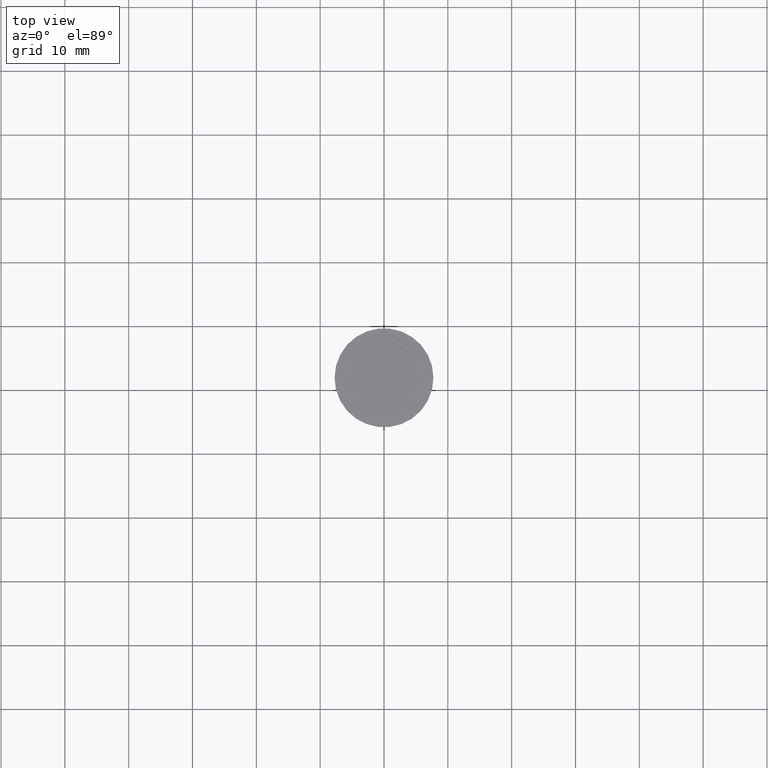
[diagram: clean part render]
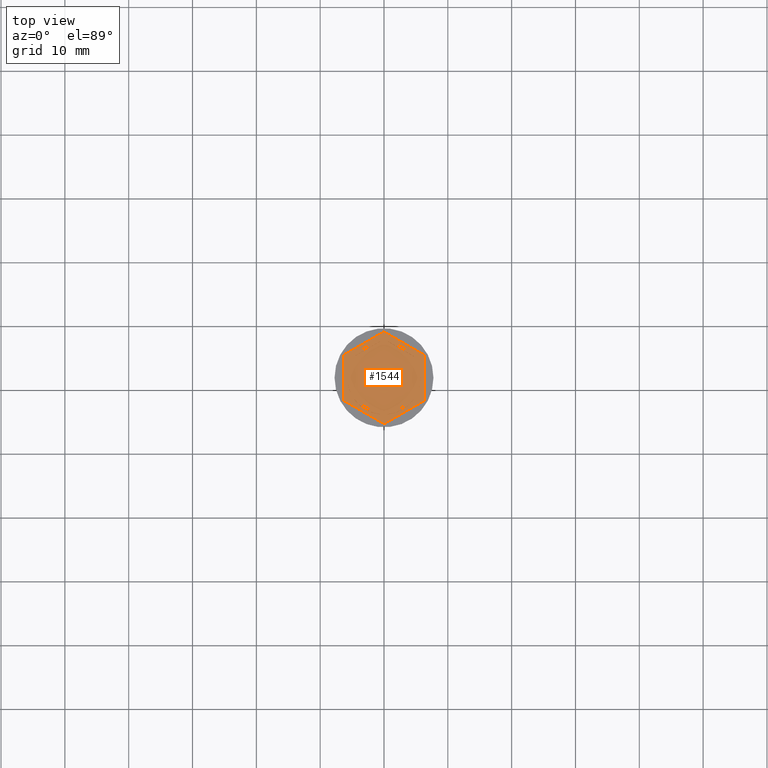
[diagram: same view with one face highlighted and labeled with its STEP entity id]
A machine part, top view. The second image highlights one B-rep face of the part: STEP entity #1544.
In plain terms, the highlighted planar face has unit normal (0, 0, 1).
Its self-contained STEP definition (entity closure, byte-faithful):
#13 = ORIENTED_EDGE ( 'NONE', *, *, #2098, .T. ) ;
#20 = AXIS2_PLACEMENT_3D ( 'NONE', #132, #627, #684 ) ;
#53 = ORIENTED_EDGE ( 'NONE', *, *, #1689, .T. ) ;
#56 = ORIENTED_EDGE ( 'NONE', *, *, #347, .F. ) ;
#77 = EDGE_LOOP ( 'NONE', ( #1543, #2139 ) ) ;
#87 = VERTEX_POINT ( 'NONE', #1238 ) ;
#89 = CARTESIAN_POINT ( 'NONE',  ( 6.249999999999998224, -3.608439182435161374, -1.000000000000000000 ) ) ;
#101 = CARTESIAN_POINT ( 'NONE',  ( 6.250000000000000000, 3.608439182435161374, -1.000000000000000000 ) ) ;
#110 = CIRCLE ( 'NONE', #222, 5.750000000000000000 ) ;
#132 = CARTESIAN_POINT ( 'NONE',  ( 0.000000000000000000, 0.000000000000000000, -1.000000000000000000 ) ) ;
#142 = AXIS2_PLACEMENT_3D ( 'NONE', #1891, #977, #284 ) ;
#144 = ORIENTED_EDGE ( 'NONE', *, *, #1880, .F. ) ;
#165 = EDGE_CURVE ( 'NONE', #363, #591, #445, .T. ) ;
#187 = VECTOR ( 'NONE', #1415, 1000.000000000000114 ) ;
#194 = DIRECTION ( 'NONE',  ( 0.8660254037844387076, -0.4999999999999998335, 0.000000000000000000 ) ) ;
#208 = LINE ( 'NONE', #922, #2072 ) ;
#222 = AXIS2_PLACEMENT_3D ( 'NONE', #521, #1993, #1218 ) ;
#228 = CIRCLE ( 'NONE', #1313, 5.750000000000000000 ) ;
#237 = DIRECTION ( 'NONE',  ( 1.000000000000000000, 0.000000000000000000, 0.000000000000000000 ) ) ;
#239 = DIRECTION ( 'NONE',  ( 1.000000000000000000, 0.000000000000000000, 0.000000000000000000 ) ) ;
#243 = CARTESIAN_POINT ( 'NONE',  ( 6.250000000000000000, 3.608439182435161374, -1.000000000000000000 ) ) ;
#268 = AXIS2_PLACEMENT_3D ( 'NONE', #1006, #619, #2075 ) ;
#270 = AXIS2_PLACEMENT_3D ( 'NONE', #1734, #1360, #469 ) ;
#284 = DIRECTION ( 'NONE',  ( 1.000000000000000000, 0.000000000000000000, 0.000000000000000000 ) ) ;
#285 = PLANE ( 'NONE',  #268 ) ;
#293 = FACE_OUTER_BOUND ( 'NONE', #1373, .T. ) ;
#341 = ORIENTED_EDGE ( 'NONE', *, *, #924, .F. ) ;
#347 = EDGE_CURVE ( 'NONE', #1434, #438, #557, .T. ) ;
#363 = VERTEX_POINT ( 'NONE', #995 ) ;
#364 = CARTESIAN_POINT ( 'NONE',  ( -0.5939903988410105695, 5.719237309824159787, -1.000000000000000888 ) ) ;
#369 = LINE ( 'NONE', #1633, #976 ) ;
#431 = EDGE_CURVE ( 'NONE', #1240, #1483, #1703, .T. ) ;
#438 = VERTEX_POINT ( 'NONE', #1747 ) ;
#445 = CIRCLE ( 'NONE', #785, 5.750000000000000000 ) ;
#469 = DIRECTION ( 'NONE',  ( 1.000000000000000000, 0.000000000000000000, 0.000000000000000000 ) ) ;
#475 = LINE ( 'NONE', #1730, #715 ) ;
#504 = EDGE_CURVE ( 'NONE', #2320, #1668, #2157, .T. ) ;
#521 = CARTESIAN_POINT ( 'NONE',  ( 0.000000000000000000, 0.000000000000000000, -1.000000000000000000 ) ) ;
#555 = CARTESIAN_POINT ( 'NONE',  ( -5.249999999999999112, 3.031088913245535199, -1.000000000000000888 ) ) ;
#557 = CIRCLE ( 'NONE', #142, 5.750000000000000000 ) ;
#591 = VERTEX_POINT ( 'NONE', #751 ) ;
#598 = DIRECTION ( 'NONE',  ( 0.000000000000000000, 0.000000000000000000, 1.000000000000000000 ) ) ;
#600 = CIRCLE ( 'NONE', #20, 5.750000000000000000 ) ;
#611 = CARTESIAN_POINT ( 'NONE',  ( -6.249999999999999112, 3.608439182435158710, -1.000000000000000000 ) ) ;
#619 = DIRECTION ( 'NONE',  ( 0.000000000000000000, 0.000000000000000000, 1.000000000000000000 ) ) ;
#623 = DIRECTION ( 'NONE',  ( -1.430775808321103440E-16, -1.000000000000000000, 0.000000000000000000 ) ) ;
#627 = DIRECTION ( 'NONE',  ( 0.000000000000000000, 0.000000000000000000, 1.000000000000000000 ) ) ;
#683 = ORIENTED_EDGE ( 'NONE', *, *, #2248, .T. ) ;
#684 = DIRECTION ( 'NONE',  ( 1.000000000000000000, 0.000000000000000000, 0.000000000000000000 ) ) ;
#714 = CARTESIAN_POINT ( 'NONE',  ( 0.5939903988410074609, -5.719237309824160675, -1.000000000000000888 ) ) ;
#715 = VECTOR ( 'NONE', #1715, 1000.000000000000000 ) ;
#725 = LINE ( 'NONE', #1773, #1199 ) ;
#739 = EDGE_CURVE ( 'NONE', #591, #1354, #600, .T. ) ;
#751 = CARTESIAN_POINT ( 'NONE',  ( -5.750000000000000000, 0.000000000000000000, -1.000000000000000000 ) ) ;
#753 = CIRCLE ( 'NONE', #270, 5.750000000000000000 ) ;
#764 = DIRECTION ( 'NONE',  ( 1.000000000000000000, 0.000000000000000000, 0.000000000000000000 ) ) ;
#785 = AXIS2_PLACEMENT_3D ( 'NONE', #1112, #2002, #239 ) ;
#787 = EDGE_LOOP ( 'NONE', ( #2210, #2104, #1470 ) ) ;
#788 = CARTESIAN_POINT ( 'NONE',  ( 0.000000000000000000, 0.000000000000000000, -1.000000000000000000 ) ) ;
#813 = DIRECTION ( 'NONE',  ( 2.403703357979454647E-16, 1.000000000000000000, 0.000000000000000000 ) ) ;
#896 = DIRECTION ( 'NONE',  ( -0.8660254037844385966, -0.5000000000000001110, 0.000000000000000000 ) ) ;
#900 = EDGE_CURVE ( 'NONE', #1354, #363, #1080, .T. ) ;
#917 = CARTESIAN_POINT ( 'NONE',  ( 5.249999999999997335, -2.345207879911720639, -1.000000000000000888 ) ) ;
#922 = CARTESIAN_POINT ( 'NONE',  ( -6.249999999999999112, -3.608439182435161374, -1.000000000000000000 ) ) ;
#924 = EDGE_CURVE ( 'NONE', #2032, #1770, #110, .T. ) ;
#947 = LINE ( 'NONE', #1660, #2036 ) ;
#958 = EDGE_CURVE ( 'NONE', #87, #1750, #369, .T. ) ;
#961 = CARTESIAN_POINT ( 'NONE',  ( -0.5939903988410105695, -5.719237309824160675, -1.000000000000000888 ) ) ;
#964 = ORIENTED_EDGE ( 'NONE', *, *, #1452, .F. ) ;
#976 = VECTOR ( 'NONE', #194, 1000.000000000000114 ) ;
#977 = DIRECTION ( 'NONE',  ( 0.000000000000000000, 0.000000000000000000, 1.000000000000000000 ) ) ;
#993 = ORIENTED_EDGE ( 'NONE', *, *, #1619, .F. ) ;
#995 = CARTESIAN_POINT ( 'NONE',  ( -5.249999999999999112, 2.345207879911715310, -1.000000000000000888 ) ) ;
#1006 = CARTESIAN_POINT ( 'NONE',  ( 0.000000000000000000, 0.000000000000000000, -1.000000000000000000 ) ) ;
#1010 = CARTESIAN_POINT ( 'NONE',  ( 6.249999999999998224, -3.608439182435161374, -1.000000000000000000 ) ) ;
#1080 = LINE ( 'NONE', #555, #1951 ) ;
#1112 = CARTESIAN_POINT ( 'NONE',  ( 0.000000000000000000, 0.000000000000000000, -1.000000000000000000 ) ) ;
#1115 = EDGE_LOOP ( 'NONE', ( #341, #964 ) ) ;
#1132 = LINE ( 'NONE', #243, #2151 ) ;
#1139 = LINE ( 'NONE', #1812, #1991 ) ;
#1149 = VERTEX_POINT ( 'NONE', #1860 ) ;
#1151 = FACE_BOUND ( 'NONE', #2281, .T. ) ;
#1165 = CIRCLE ( 'NONE', #1270, 5.750000000000000000 ) ;
#1199 = VECTOR ( 'NONE', #896, 1000.000000000000114 ) ;
#1218 = DIRECTION ( 'NONE',  ( 1.000000000000000000, 0.000000000000000000, 0.000000000000000000 ) ) ;
#1221 = ORIENTED_EDGE ( 'NONE', *, *, #2272, .F. ) ;
#1236 = DIRECTION ( 'NONE',  ( 0.8660254037844387076, 0.4999999999999999445, -0.000000000000000000 ) ) ;
#1238 = CARTESIAN_POINT ( 'NONE',  ( 0.5939903988410126789, 5.719237309824160675, -1.000000000000000888 ) ) ;
#1240 = VERTEX_POINT ( 'NONE', #1010 ) ;
#1266 = EDGE_CURVE ( 'NONE', #1706, #1240, #475, .T. ) ;
#1270 = AXIS2_PLACEMENT_3D ( 'NONE', #788, #2019, #237 ) ;
#1272 = VECTOR ( 'NONE', #1684, 1000.000000000000000 ) ;
#1313 = AXIS2_PLACEMENT_3D ( 'NONE', #1854, #598, #764 ) ;
#1316 = CARTESIAN_POINT ( 'NONE',  ( -5.249999999999999112, -2.345207879911715310, -1.000000000000000888 ) ) ;
#1339 = FACE_BOUND ( 'NONE', #77, .T. ) ;
#1340 = ORIENTED_EDGE ( 'NONE', *, *, #958, .F. ) ;
#1352 = FACE_BOUND ( 'NONE', #2322, .T. ) ;
#1354 = VERTEX_POINT ( 'NONE', #1316 ) ;
#1360 = DIRECTION ( 'NONE',  ( 0.000000000000000000, 0.000000000000000000, 1.000000000000000000 ) ) ;
#1373 = EDGE_LOOP ( 'NONE', ( #683, #13, #1745, #53, #1431, #1965 ) ) ;
#1415 = DIRECTION ( 'NONE',  ( -0.8660254037844384856, 0.5000000000000002220, 0.000000000000000000 ) ) ;
#1431 = ORIENTED_EDGE ( 'NONE', *, *, #1266, .T. ) ;
#1434 = VERTEX_POINT ( 'NONE', #917 ) ;
#1452 = EDGE_CURVE ( 'NONE', #1770, #2032, #1139, .T. ) ;
#1470 = ORIENTED_EDGE ( 'NONE', *, *, #739, .F. ) ;
#1483 = VERTEX_POINT ( 'NONE', #101 ) ;
#1504 = FACE_BOUND ( 'NONE', #1677, .T. ) ;
#1509 = DIRECTION ( 'NONE',  ( -0.8660254037844388186, 0.4999999999999997224, 0.000000000000000000 ) ) ;
#1531 = VERTEX_POINT ( 'NONE', #2059 ) ;
#1543 = ORIENTED_EDGE ( 'NONE', *, *, #1793, .F. ) ;
#1544 = ADVANCED_FACE ( 'NONE', ( #1504, #1151, #2084, #1352, #1902, #1339, #293 ), #285, .T. ) ;
#1619 = EDGE_CURVE ( 'NONE', #1741, #1149, #1998, .T. ) ;
#1633 = CARTESIAN_POINT ( 'NONE',  ( 5.249999999999997335, 3.031088913245537864, -1.000000000000000888 ) ) ;
#1635 = DIRECTION ( 'NONE',  ( 0.8660254037844385966, -0.4999999999999998890, 0.000000000000000000 ) ) ;
#1639 = VECTOR ( 'NONE', #1236, 1000.000000000000000 ) ;
#1660 = CARTESIAN_POINT ( 'NONE',  ( 5.249999999999996447, -3.031088913245536975, -1.000000000000000888 ) ) ;
#1668 = VERTEX_POINT ( 'NONE', #364 ) ;
#1677 = EDGE_LOOP ( 'NONE', ( #2015, #1340 ) ) ;
#1684 = DIRECTION ( 'NONE',  ( 0.000000000000000000, -1.000000000000000000, 0.000000000000000000 ) ) ;
#1687 = CARTESIAN_POINT ( 'NONE',  ( 4.656009601158990208, -3.374029429912445810, -1.000000000000000888 ) ) ;
#1689 = EDGE_CURVE ( 'NONE', #2137, #1706, #208, .T. ) ;
#1702 = CARTESIAN_POINT ( 'NONE',  ( 4.656009601158988431, 3.374029429912448919, -1.000000000000000888 ) ) ;
#1703 = LINE ( 'NONE', #89, #2060 ) ;
#1706 = VERTEX_POINT ( 'NONE', #2340 ) ;
#1715 = DIRECTION ( 'NONE',  ( 0.8660254037844385966, 0.5000000000000001110, 0.000000000000000000 ) ) ;
#1730 = CARTESIAN_POINT ( 'NONE',  ( 8.729740977282959667E-16, -7.216878364870321860, -1.000000000000000000 ) ) ;
#1734 = CARTESIAN_POINT ( 'NONE',  ( 0.000000000000000000, 0.000000000000000000, -1.000000000000000000 ) ) ;
#1741 = VERTEX_POINT ( 'NONE', #961 ) ;
#1745 = ORIENTED_EDGE ( 'NONE', *, *, #2145, .T. ) ;
#1746 = EDGE_CURVE ( 'NONE', #1750, #87, #228, .T. ) ;
#1747 = CARTESIAN_POINT ( 'NONE',  ( 5.249999999999997335, 2.345207879911718862, -1.000000000000000888 ) ) ;
#1750 = VERTEX_POINT ( 'NONE', #1702 ) ;
#1770 = VERTEX_POINT ( 'NONE', #1687 ) ;
#1773 = CARTESIAN_POINT ( 'NONE',  ( 0.000000000000000000, 7.216878364870320084, -1.000000000000000000 ) ) ;
#1793 = EDGE_CURVE ( 'NONE', #1668, #2320, #1165, .T. ) ;
#1812 = CARTESIAN_POINT ( 'NONE',  ( -1.734723475976807094E-15, -6.062177826491069510, -1.000000000000000888 ) ) ;
#1815 = DIRECTION ( 'NONE',  ( 0.000000000000000000, 1.000000000000000000, 0.000000000000000000 ) ) ;
#1838 = CARTESIAN_POINT ( 'NONE',  ( -6.249999999999999112, 3.608439182435158710, -1.000000000000000000 ) ) ;
#1854 = CARTESIAN_POINT ( 'NONE',  ( 0.000000000000000000, 0.000000000000000000, -1.000000000000000000 ) ) ;
#1860 = CARTESIAN_POINT ( 'NONE',  ( -4.656009601158991096, -3.374029429912444034, -1.000000000000000888 ) ) ;
#1861 = LINE ( 'NONE', #1838, #1272 ) ;
#1880 = EDGE_CURVE ( 'NONE', #1149, #1741, #753, .T. ) ;
#1891 = CARTESIAN_POINT ( 'NONE',  ( 0.000000000000000000, 0.000000000000000000, -1.000000000000000000 ) ) ;
#1902 = FACE_BOUND ( 'NONE', #787, .T. ) ;
#1951 = VECTOR ( 'NONE', #1815, 1000.000000000000000 ) ;
#1965 = ORIENTED_EDGE ( 'NONE', *, *, #431, .T. ) ;
#1968 = CARTESIAN_POINT ( 'NONE',  ( 8.673617379884035472E-16, 6.062177826491070398, -1.000000000000000888 ) ) ;
#1988 = DIRECTION ( 'NONE',  ( -0.8660254037844387076, -0.4999999999999997224, 0.000000000000000000 ) ) ;
#1991 = VECTOR ( 'NONE', #1988, 1000.000000000000114 ) ;
#1993 = DIRECTION ( 'NONE',  ( 0.000000000000000000, 0.000000000000000000, 1.000000000000000000 ) ) ;
#1998 = LINE ( 'NONE', #2329, #187 ) ;
#2002 = DIRECTION ( 'NONE',  ( 0.000000000000000000, 0.000000000000000000, 1.000000000000000000 ) ) ;
#2015 = ORIENTED_EDGE ( 'NONE', *, *, #1746, .F. ) ;
#2019 = DIRECTION ( 'NONE',  ( 0.000000000000000000, 0.000000000000000000, 1.000000000000000000 ) ) ;
#2032 = VERTEX_POINT ( 'NONE', #714 ) ;
#2036 = VECTOR ( 'NONE', #623, 1000.000000000000000 ) ;
#2059 = CARTESIAN_POINT ( 'NONE',  ( 0.000000000000000000, 7.216878364870320084, -1.000000000000000000 ) ) ;
#2060 = VECTOR ( 'NONE', #813, 1000.000000000000000 ) ;
#2072 = VECTOR ( 'NONE', #1635, 1000.000000000000227 ) ;
#2075 = DIRECTION ( 'NONE',  ( 1.000000000000000000, 0.000000000000000000, -0.000000000000000000 ) ) ;
#2084 = FACE_BOUND ( 'NONE', #1115, .T. ) ;
#2098 = EDGE_CURVE ( 'NONE', #1531, #2182, #725, .T. ) ;
#2104 = ORIENTED_EDGE ( 'NONE', *, *, #900, .F. ) ;
#2136 = CARTESIAN_POINT ( 'NONE',  ( -6.249999999999999112, -3.608439182435161374, -1.000000000000000000 ) ) ;
#2137 = VERTEX_POINT ( 'NONE', #2136 ) ;
#2139 = ORIENTED_EDGE ( 'NONE', *, *, #504, .F. ) ;
#2145 = EDGE_CURVE ( 'NONE', #2182, #2137, #1861, .T. ) ;
#2151 = VECTOR ( 'NONE', #1509, 1000.000000000000000 ) ;
#2157 = LINE ( 'NONE', #1968, #1639 ) ;
#2182 = VERTEX_POINT ( 'NONE', #611 ) ;
#2210 = ORIENTED_EDGE ( 'NONE', *, *, #165, .F. ) ;
#2248 = EDGE_CURVE ( 'NONE', #1483, #1531, #1132, .T. ) ;
#2272 = EDGE_CURVE ( 'NONE', #438, #1434, #947, .T. ) ;
#2279 = CARTESIAN_POINT ( 'NONE',  ( -4.656009601158989319, 3.374029429912446698, -1.000000000000000888 ) ) ;
#2281 = EDGE_LOOP ( 'NONE', ( #56, #1221 ) ) ;
#2320 = VERTEX_POINT ( 'NONE', #2279 ) ;
#2322 = EDGE_LOOP ( 'NONE', ( #144, #993 ) ) ;
#2329 = CARTESIAN_POINT ( 'NONE',  ( -5.249999999999999112, -3.031088913245534311, -1.000000000000000888 ) ) ;
#2340 = CARTESIAN_POINT ( 'NONE',  ( 8.729740977282959667E-16, -7.216878364870321860, -1.000000000000000000 ) ) ;